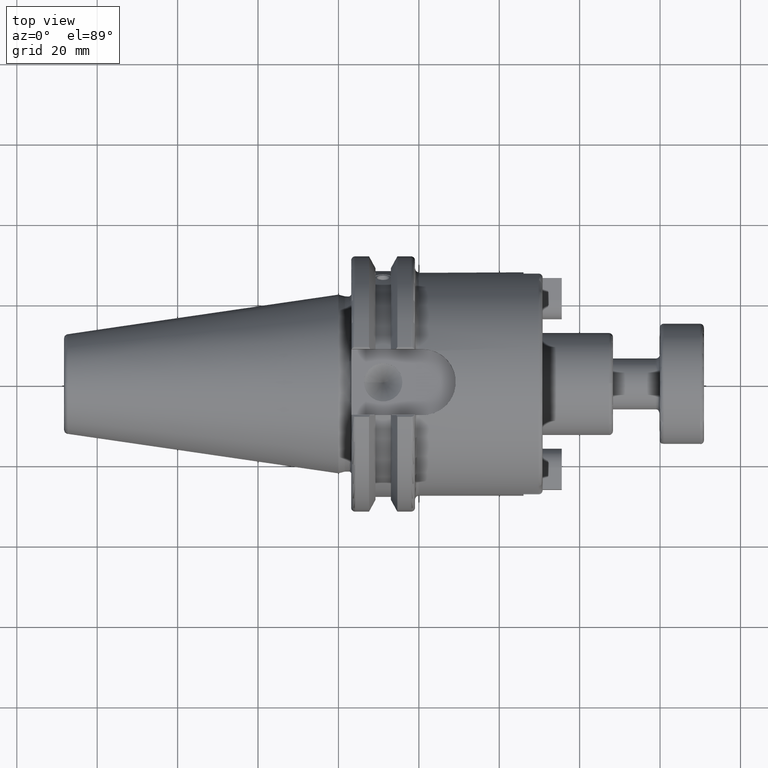
[diagram: clean part render]
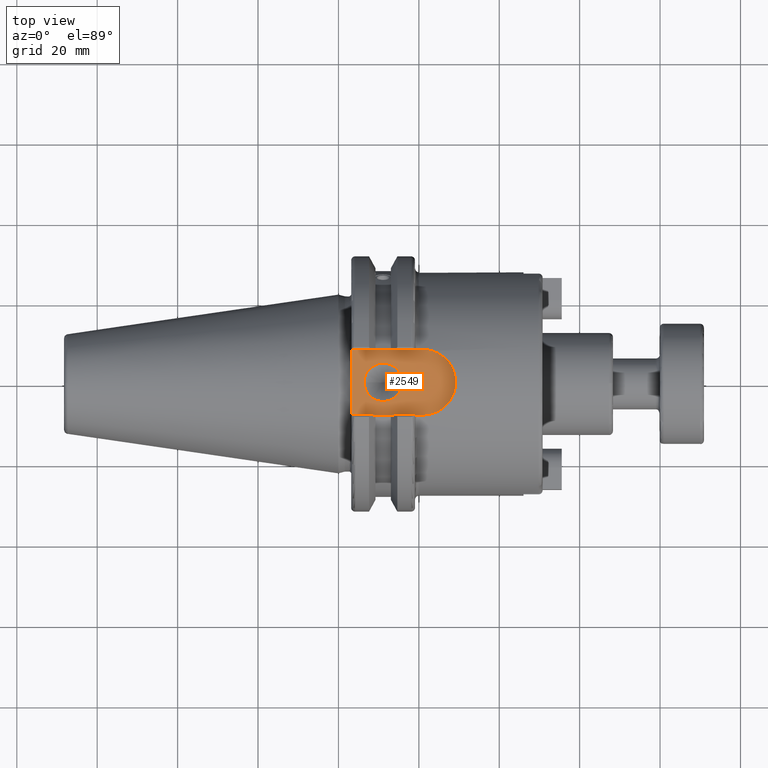
[diagram: same view with one face highlighted and labeled with its STEP entity id]
A machine part, top view. The second image highlights one B-rep face of the part: STEP entity #2549.
In plain terms, the highlighted planar face has unit normal (0, 0, 1).
Its self-contained STEP definition (entity closure, byte-faithful):
#186=FACE_BOUND('',#583,.T.);
#227=CIRCLE('',#2762,8.19000000000001);
#275=CIRCLE('',#2889,4.7625);
#420=FACE_OUTER_BOUND('',#582,.T.);
#582=EDGE_LOOP('',(#2155,#2156,#2157,#2158));
#583=EDGE_LOOP('',(#2159));
#713=LINE('',#4464,#877);
#725=LINE('',#4568,#889);
#740=LINE('',#4693,#904);
#877=VECTOR('',#3368,10.);
#889=VECTOR('',#3400,10.);
#904=VECTOR('',#3457,10.);
#1067=VERTEX_POINT('',#4119);
#1068=VERTEX_POINT('',#4121);
#1144=VERTEX_POINT('',#4461);
#1145=VERTEX_POINT('',#4463);
#1187=VERTEX_POINT('',#4716);
#1337=EDGE_CURVE('',#1068,#1067,#227,.T.);
#1444=EDGE_CURVE('',#1144,#1145,#713,.T.);
#1470=EDGE_CURVE('',#1144,#1068,#725,.T.);
#1507=EDGE_CURVE('',#1067,#1145,#740,.T.);
#1516=EDGE_CURVE('',#1187,#1187,#275,.T.);
#2155=ORIENTED_EDGE('',*,*,#1444,.F.);
#2156=ORIENTED_EDGE('',*,*,#1470,.T.);
#2157=ORIENTED_EDGE('',*,*,#1337,.T.);
#2158=ORIENTED_EDGE('',*,*,#1507,.T.);
#2159=ORIENTED_EDGE('',*,*,#1516,.T.);
#2422=PLANE('',#2904);
#2549=ADVANCED_FACE('',(#420,#186),#2422,.T.);
#2762=AXIS2_PLACEMENT_3D('',#4122,#3160,#3161);
#2889=AXIS2_PLACEMENT_3D('',#4717,#3485,#3486);
#2904=AXIS2_PLACEMENT_3D('',#4733,#3516,#3517);
#3160=DIRECTION('center_axis',(0.,0.,1.));
#3161=DIRECTION('ref_axis',(1.08446693492078E-15,-1.,0.));
#3368=DIRECTION('',(0.,1.,0.));
#3400=DIRECTION('',(1.,-4.36359414507362E-16,0.));
#3457=DIRECTION('',(-1.,-1.87011177646012E-16,0.));
#3485=DIRECTION('center_axis',(0.,0.,-1.));
#3486=DIRECTION('ref_axis',(1.,0.,0.));
#3516=DIRECTION('center_axis',(0.,0.,1.));
#3517=DIRECTION('ref_axis',(1.,0.,0.));
#4119=CARTESIAN_POINT('',(20.985,8.19,25.));
#4121=CARTESIAN_POINT('',(20.985,-8.19000000000003,25.));
#4122=CARTESIAN_POINT('Origin',(20.985,1.58308003551686E-14,25.));
#4461=CARTESIAN_POINT('',(3.175,-8.19000000000002,25.));
#4463=CARTESIAN_POINT('',(3.175,8.19,25.));
#4464=CARTESIAN_POINT('',(3.175,15.875,25.));
#4568=CARTESIAN_POINT('',(3.175,-8.19000000000002,25.));
#4693=CARTESIAN_POINT('',(20.985,8.19,25.));
#4716=CARTESIAN_POINT('',(6.3716,-5.83238038093927E-16,25.));
#4717=CARTESIAN_POINT('Origin',(11.1341,0.,25.));
#4733=CARTESIAN_POINT('Origin',(15.7075,0.,25.));